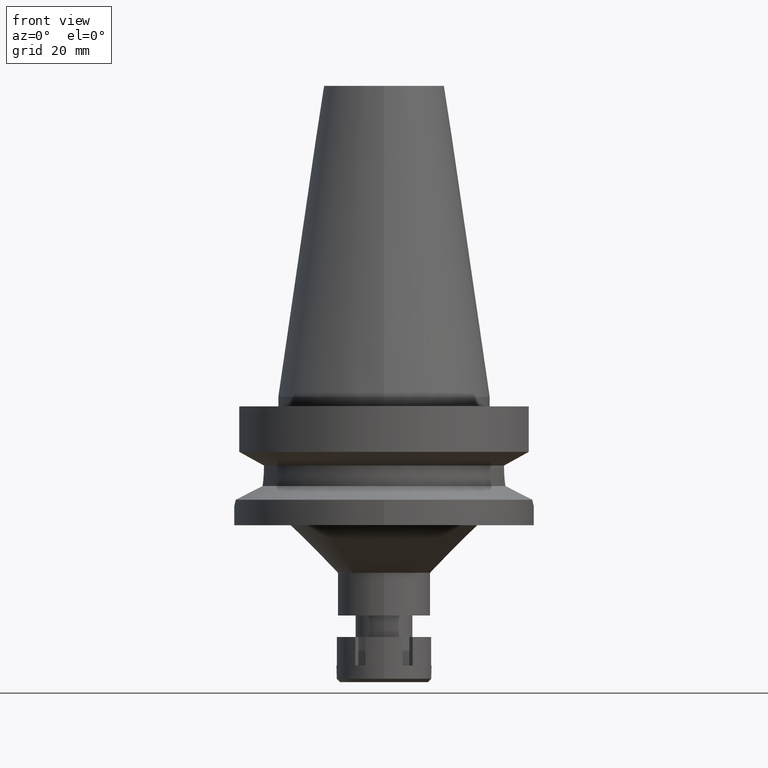
[diagram: clean part render]
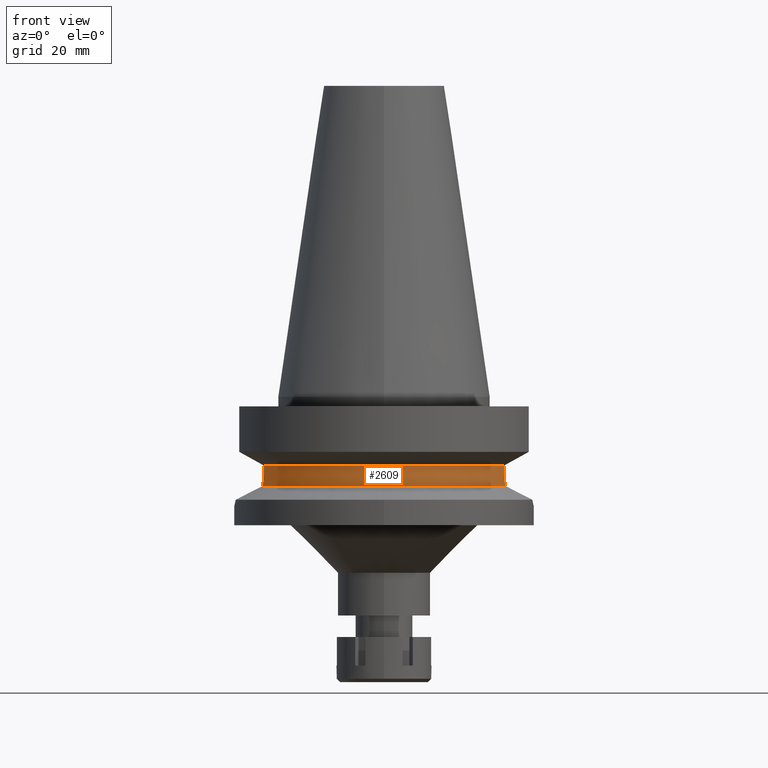
[diagram: same view with one face highlighted and labeled with its STEP entity id]
A machine part, front view. The second image highlights one B-rep face of the part: STEP entity #2609.
In plain terms, the highlighted cylindrical surface (partial cylindrical patch) has radius 26.5 mm, axis along (0, 0, -1).
Its self-contained STEP definition (entity closure, byte-faithful):
#29 = CARTESIAN_POINT ( 'NONE',  ( -25.35407699156058570, -7.708962562372580152, -17.26964265289514344 ) ) ;
#58 = ORIENTED_EDGE ( 'NONE', *, *, #1361, .F. ) ;
#80 = CARTESIAN_POINT ( 'NONE',  ( 0.0000000000000000000, 0.0000000000000000000, -18.74774300138999905 ) ) ;
#97 = EDGE_LOOP ( 'NONE', ( #1894, #753, #487, #58, #1539, #1481 ) ) ;
#144 = DIRECTION ( 'NONE',  ( 9.929810000712572451E-07, 3.114350824549865952E-06, -0.9999999999946573848 ) ) ;
#189 = VERTEX_POINT ( 'NONE', #2692 ) ;
#200 = EDGE_CURVE ( 'NONE', #189, #2917, #750, .T. ) ;
#205 = CARTESIAN_POINT ( 'NONE',  ( 25.31649706320713022, -7.831262302043771939, -16.81393877542647175 ) ) ;
#237 = VERTEX_POINT ( 'NONE', #2224 ) ;
#306 = EDGE_CURVE ( 'NONE', #189, #541, #412, .T. ) ;
#308 = CARTESIAN_POINT ( 'NONE',  ( -25.27267878703948156, -7.973310748594792940, -16.24511349491563195 ) ) ;
#346 = CIRCLE ( 'NONE', #587, 26.50000000000000711 ) ;
#412 = CIRCLE ( 'NONE', #2323, 26.49999999999998224 ) ;
#487 = ORIENTED_EDGE ( 'NONE', *, *, #843, .F. ) ;
#541 = VERTEX_POINT ( 'NONE', #3110 ) ;
#547 = CARTESIAN_POINT ( 'NONE',  ( 25.43787059316623811, -7.435562863551551160, -18.11659112037981245 ) ) ;
#587 = AXIS2_PLACEMENT_3D ( 'NONE', #2486, #3302, #1358 ) ;
#612 = CARTESIAN_POINT ( 'NONE',  ( -25.24772266957999989, -8.049999999999979394, -15.58990582805522784 ) ) ;
#694 = CARTESIAN_POINT ( 'NONE',  ( 25.24772266958000699, -8.050000000000002487, -15.26994624127543254 ) ) ;
#750 = B_SPLINE_CURVE_WITH_KNOTS ( 'NONE', 3,
 ( #2783, #1681, #1391, #3093, #2828, #29, #1662, #2795, #1404, #3331, #1972, #308, #612, #2512 ),
 .UNSPECIFIED., .F., .F.,
 ( 4, 2, 2, 1, 1, 2, 2, 4 ),
 ( 0.0000000000000000000, 0.2499999999999841238, 0.3749999999999763522, 0.4374999999999725775, 0.4687499999999721889, 0.4843749999999718558, 0.4999999999999715783, 1.000000000000000000 ),
 .UNSPECIFIED. ) ;
#753 = ORIENTED_EDGE ( 'NONE', *, *, #306, .T. ) ;
#843 = EDGE_CURVE ( 'NONE', #237, #541, #2756, .T. ) ;
#851 = DIRECTION ( 'NONE',  ( 0.0000000000000000000, 0.0000000000000000000, 1.000000000000000000 ) ) ;
#1012 = CARTESIAN_POINT ( 'NONE',  ( 25.32119310062510209, -7.816055872885958600, -16.87669021870241082 ) ) ;
#1025 = DIRECTION ( 'NONE',  ( -2.967493825939956601E-06, 9.307144001593875188E-06, 0.9999999999522856120 ) ) ;
#1057 = CARTESIAN_POINT ( 'NONE',  ( 25.53175183775000079, -7.097862220092999941, -18.74774300138999905 ) ) ;
#1121 = CARTESIAN_POINT ( 'NONE',  ( 0.0000000000000000000, 2.099289543097999720E-14, 71.42000000000000171 ) ) ;
#1260 = LINE ( 'NONE', #2367, #2754 ) ;
#1300 = CARTESIAN_POINT ( 'NONE',  ( 25.36815874793582992, -7.663791245584273604, -17.48814129407832141 ) ) ;
#1321 = CARTESIAN_POINT ( 'NONE',  ( 25.30213757442783518, -7.877637162928092351, -16.61056528421136846 ) ) ;
#1339 = CARTESIAN_POINT ( 'NONE',  ( 25.27268721373958371, -7.971796898640264750, -16.08126439300963639 ) ) ;
#1358 = DIRECTION ( 'NONE',  ( 0.9527442516822307583, -0.3037735849057093818, 0.0000000000000000000 ) ) ;
#1361 = EDGE_CURVE ( 'NONE', #3080, #237, #3148, .T. ) ;
#1391 = CARTESIAN_POINT ( 'NONE',  ( -25.44389776528783997, -7.408340107185043877, -18.11686868422951591 ) ) ;
#1404 = CARTESIAN_POINT ( 'NONE',  ( -25.32840181445836336, -7.792653841590518660, -16.96926092298874877 ) ) ;
#1468 = EDGE_CURVE ( 'NONE', #2917, #1658, #1260, .T. ) ;
#1481 = ORIENTED_EDGE ( 'NONE', *, *, #1468, .F. ) ;
#1539 = ORIENTED_EDGE ( 'NONE', *, *, #2585, .T. ) ;
#1658 = VERTEX_POINT ( 'NONE', #2743 ) ;
#1662 = CARTESIAN_POINT ( 'NONE',  ( -25.34383784690667696, -7.742464100974354224, -17.15621186859764791 ) ) ;
#1668 = CYLINDRICAL_SURFACE ( 'NONE', #2026, 26.50000000000000000 ) ;
#1681 = CARTESIAN_POINT ( 'NONE',  ( -25.48480250143031967, -7.266743887089764264, -18.43210847756382620 ) ) ;
#1727 = CARTESIAN_POINT ( 'NONE',  ( 25.24772217532000340, -8.050001550182999566, -14.45224515383999808 ) ) ;
#1840 = VECTOR ( 'NONE', #144, 1000.000000000000114 ) ;
#1894 = ORIENTED_EDGE ( 'NONE', *, *, #200, .F. ) ;
#1905 = CARTESIAN_POINT ( 'NONE',  ( 25.29453118987922622, -7.902064242008846939, -16.48842005659398779 ) ) ;
#1920 = CARTESIAN_POINT ( 'NONE',  ( 25.31203562611613123, -7.845693926006510388, -16.75295273496641002 ) ) ;
#1972 = CARTESIAN_POINT ( 'NONE',  ( -25.32415077929965719, -7.806445795312396463, -16.91528421260447601 ) ) ;
#2026 = AXIS2_PLACEMENT_3D ( 'NONE', #1121, #2228, #3316 ) ;
#2224 = CARTESIAN_POINT ( 'NONE',  ( 25.24772266958000344, -8.050000000000000711, -14.94999999999999929 ) ) ;
#2228 = DIRECTION ( 'NONE',  ( 0.0000000000000000000, 0.0000000000000000000, -1.000000000000000000 ) ) ;
#2260 = DIRECTION ( 'NONE',  ( -0.9634623335000935818, -0.2678438573619981722, 0.0000000000000000000 ) ) ;
#2275 = CARTESIAN_POINT ( 'NONE',  ( 25.24772266958000344, -8.050000000000000711, -14.45225699861000024 ) ) ;
#2323 = AXIS2_PLACEMENT_3D ( 'NONE', #80, #851, #2260 ) ;
#2367 = CARTESIAN_POINT ( 'NONE',  ( -25.24772266958000344, -8.050000000000000711, -14.94999999999999929 ) ) ;
#2486 = CARTESIAN_POINT ( 'NONE',  ( 0.0000000000000000000, 1.065333950388000029E-14, -14.45225699861000024 ) ) ;
#2503 = FACE_OUTER_BOUND ( 'NONE', #97, .T. ) ;
#2512 = CARTESIAN_POINT ( 'NONE',  ( -25.24772266958000344, -8.050000000000000711, -14.94999999999999929 ) ) ;
#2585 = EDGE_CURVE ( 'NONE', #3080, #1658, #346, .T. ) ;
#2609 = ADVANCED_FACE ( 'NONE', ( #2503 ), #1668, .T. ) ;
#2692 = CARTESIAN_POINT ( 'NONE',  ( -25.53175183775000079, -7.097862220092999941, -18.74774300138999905 ) ) ;
#2733 = CARTESIAN_POINT ( 'NONE',  ( 25.28048863378946365, -7.947021833588224560, -16.24412758178397098 ) ) ;
#2743 = CARTESIAN_POINT ( 'NONE',  ( -25.24772414651999952, -8.049995367763999710, -14.45229239496999973 ) ) ;
#2754 = VECTOR ( 'NONE', #1025, 999.9999999999998863 ) ;
#2756 = B_SPLINE_CURVE_WITH_KNOTS ( 'NONE', 3,
 ( #3154, #694, #2897, #1339, #2733, #1905, #1321, #1920, #205, #3231, #1012, #1300, #547, #1057 ),
 .UNSPECIFIED., .F., .F.,
 ( 4, 2, 2, 1, 1, 2, 2, 4 ),
 ( 0.0000000000000000000, 0.2499999999999921174, 0.3749999999999881761, 0.4374999999999861222, 0.4687499999999850675, 0.4843749999999844569, 0.4999999999999838463, 1.000000000000000000 ),
 .UNSPECIFIED. ) ;
#2783 = CARTESIAN_POINT ( 'NONE',  ( -25.53175183775000079, -7.097862220092999941, -18.74774300138999905 ) ) ;
#2795 = CARTESIAN_POINT ( 'NONE',  ( -25.33288387036036582, -7.778102131033523214, -17.02514599129639095 ) ) ;
#2828 = CARTESIAN_POINT ( 'NONE',  ( -25.37568864340162733, -7.637841086874976426, -17.49779646604959638 ) ) ;
#2897 = CARTESIAN_POINT ( 'NONE',  ( 25.25396380561988607, -8.030903546293970408, -15.59366754646399400 ) ) ;
#2917 = VERTEX_POINT ( 'NONE', #3435 ) ;
#3080 = VERTEX_POINT ( 'NONE', #2275 ) ;
#3093 = CARTESIAN_POINT ( 'NONE',  ( -25.39160756133994923, -7.584934398586919535, -17.65162641215484385 ) ) ;
#3110 = CARTESIAN_POINT ( 'NONE',  ( 25.53175183775000079, -7.097862220092999941, -18.74774300138999905 ) ) ;
#3148 = LINE ( 'NONE', #1727, #1840 ) ;
#3154 = CARTESIAN_POINT ( 'NONE',  ( 25.24772266958000344, -8.050000000000000711, -14.94999999999999929 ) ) ;
#3231 = CARTESIAN_POINT ( 'NONE',  ( 25.31952011347645382, -7.821476031033693488, -16.85458649000659648 ) ) ;
#3302 = DIRECTION ( 'NONE',  ( 0.0000000000000000000, 0.0000000000000000000, -1.000000000000000000 ) ) ;
#3316 = DIRECTION ( 'NONE',  ( 0.0000000000000000000, -1.000000000000000000, 0.0000000000000000000 ) ) ;
#3331 = CARTESIAN_POINT ( 'NONE',  ( -25.32546100062923244, -7.802196480338689177, -16.93206928540737621 ) ) ;
#3435 = CARTESIAN_POINT ( 'NONE',  ( -25.24772266958000344, -8.050000000000000711, -14.94999999999999929 ) ) ;